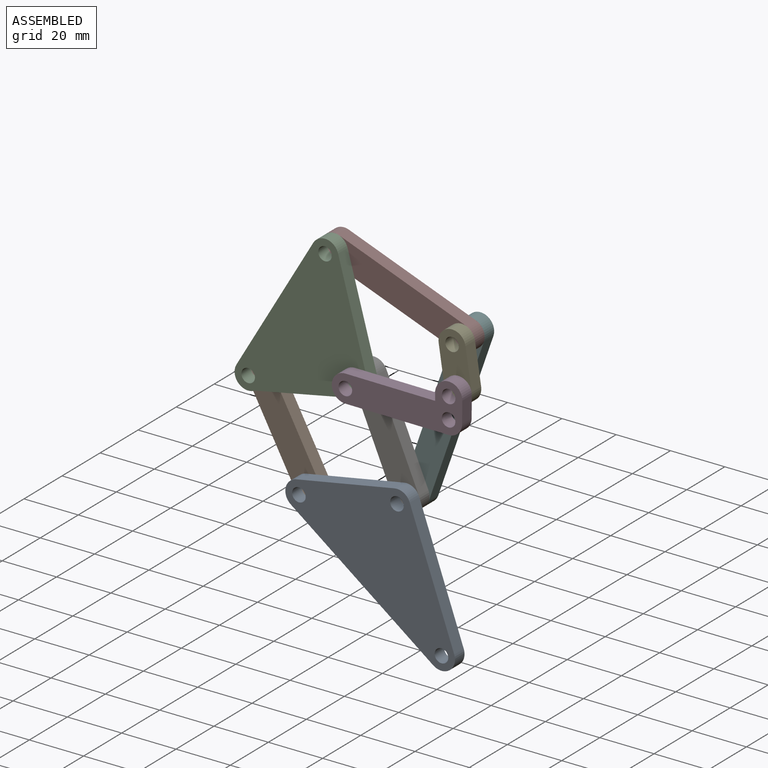
[diagram: assembled view]
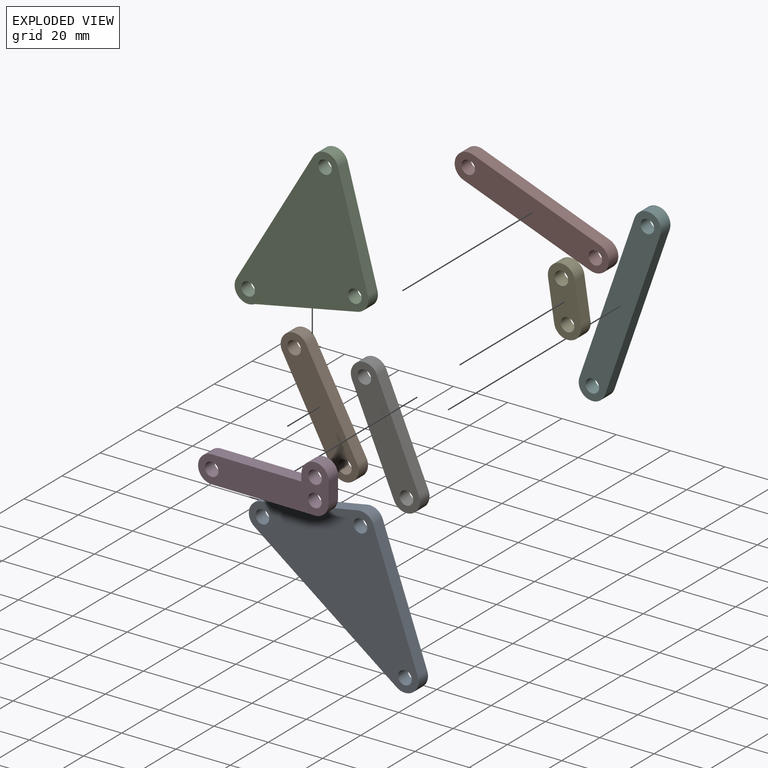
[diagram: exploded view]
GUIDED TOUR — MATED ASSEMBLY (Onshape document 87e573bf65f97dc9dd49f479, AutoMate assembly 87e573bf65f97dc9dd49f479_4f0b6509377dddf5492f0ded_013e0e6eb9ad2438bd5088ae_default)

This assembly has 8 components, labeled P0..P7 below (a component is one placed occurrence of a part; the same part can appear more than once), held together by 16 mates. A mate is a constraint between two components; its type names the relative motion it leaves free:
  BALL — leaves all rotation about the listed point free (a ball joint),
  CYLINDRICAL — leaves both rotation about and translation along the listed axis free,
  PIN_SLOT — leaves rotation about the listed axis plus translation along a slot free.
Axis/direction vectors are unit vectors and 'through' points are millimeter coordinates, both in the assembly's world frame.

MATES
  1. PIN_SLOT "Pin slot 1": P4 <-> P3, axis (0.000, 1.000, 0.000) through (-17.35, -12.50, 57.22) mm
  2. CYLINDRICAL "Cylindrical 1": P2 <-> P3, axis (0.000, -1.000, 0.000) through (-55.41, -12.50, 49.69) mm
  3. CYLINDRICAL "Cylindrical 8": P6 <-> P5, axis (0.000, 1.000, 0.000) through (-39.91, -2.50, 13.57) mm
  4. CYLINDRICAL "Cylindrical 7": P4 <-> P7, axis (0.000, 1.000, 0.000) through (-19.61, -7.50, 72.05) mm
  5. CYLINDRICAL "Cylindrical 3": P0 <-> P6, axis (0.000, 1.000, 0.000) through (-39.91, -7.50, 13.57) mm
  6. CYLINDRICAL "Cylindrical 5": P2 <-> P6, axis (0.000, 1.000, 0.000) through (-55.41, -7.50, 49.69) mm
  7. BALL "Ball 2": P2 <-> P3, direction (0.000, -1.000, 0.000) through (-55.41, -12.50, 49.69) mm
  8. CYLINDRICAL "Cylindrical 4": P1 <-> P2, axis (0.000, -1.000, 0.000) through (-94.68, -7.50, 41.61) mm
  9. BALL "Ball 1": P0 <-> P6, direction (0.000, 1.000, 0.000) through (-39.91, -7.50, 13.57) mm
  10. BALL "Ball 3": P1 <-> P0, direction (0.000, -1.000, 0.000) through (-76.00, -7.50, 6.92) mm
  11. CYLINDRICAL "Cylindrical 6": P4 <-> P3, axis (0.000, 1.000, 0.000) through (-17.35, -12.50, 57.22) mm
  12. BALL "Ball 9": P7 <-> P5, direction (0.000, 1.000, 0.000) through (-19.61, -2.50, 72.05) mm
  13. CYLINDRICAL "Cylindrical 2": P0 <-> P1, axis (0.000, 1.000, 0.000) through (-76.00, -7.50, 6.92) mm
  14. BALL "Ball 8": P6 <-> P5, direction (0.000, 1.000, 0.000) through (-39.91, -2.50, 13.57) mm
  15. BALL "Ball 4": P2 <-> P1, direction (0.000, 1.000, 0.000) through (-94.68, -7.50, 41.61) mm
  16. BALL "Ball 7": P7 <-> P2, direction (0.000, -1.000, 0.000) through (-66.39, -7.50, 89.70) mm

ASSEMBLY ORDER
  1. P6 — the base component [order verified]
  2. P1 [order verified]
  3. P2 [order verified]
  4. P4 [order verified]
  5. P7 [order verified]
  6. P0 [order verified]
  7. P5 [order verified]
  8. P3 [order verified]
Order-tag legend:
  [order verified] — this step's position reverses a verified removal order: the component was checked to insert without passing through the ones already placed.

Of the 8 components, 6 carry the full construction recipe — the FeatureScript program that regenerates the part's solid from scratch; the rest are supplied as boundary geometry only.
Each toured component is shown spotlighted twice — in the assembled view, then in the exploded view, where a leader line traces a displaced component back to its assembled socket (saturated green if recipe-attached, orange if geometry-only; every other component desaturated gray) — followed by its recipe or geometry summary and the mates that hold it.
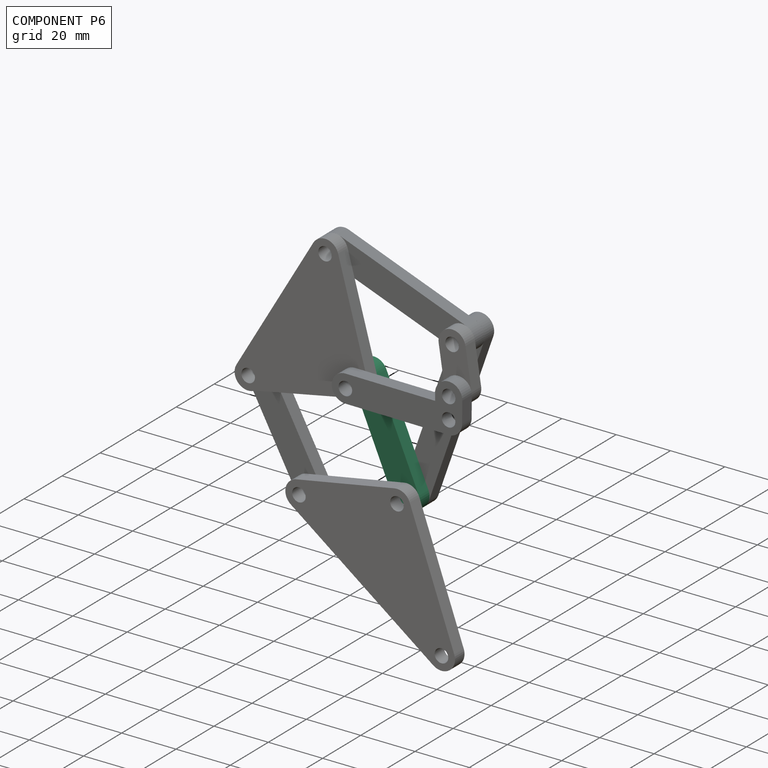
[diagram: component P6 — assembled]
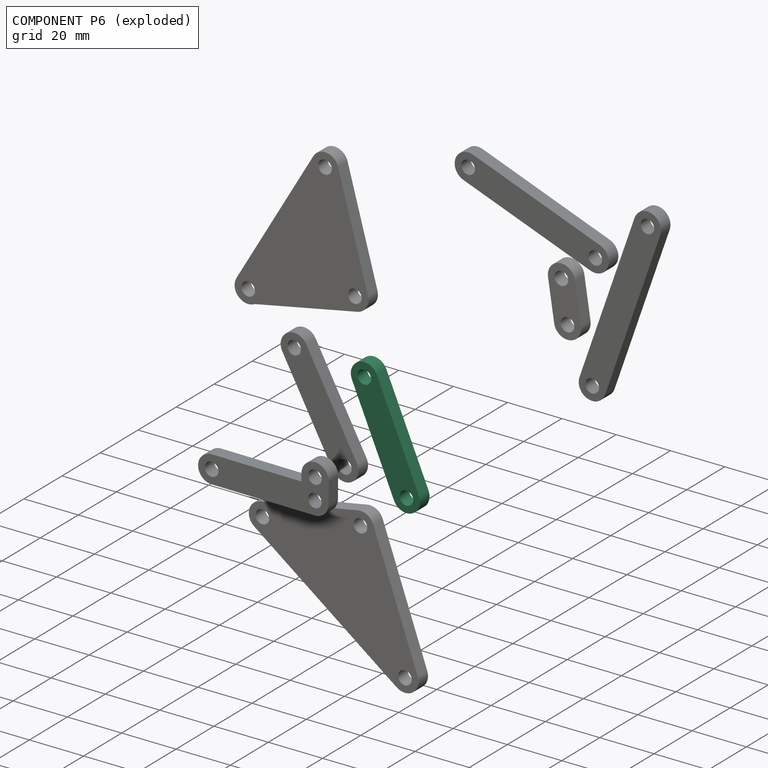
[diagram: component P6 — exploded]
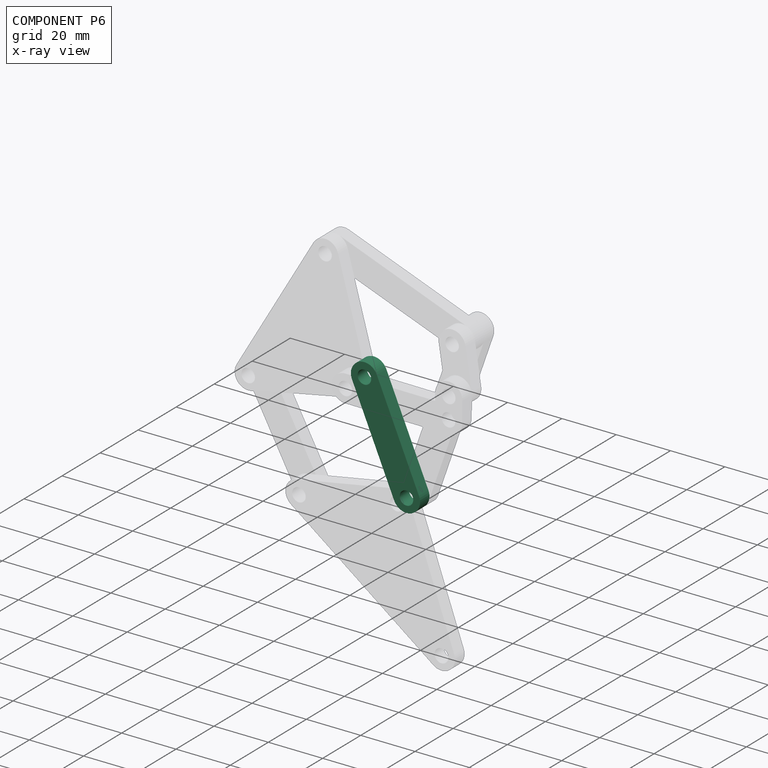
[diagram: component P6 — x-ray view]
COMPONENT P6 — recipe-attached (CADFS 00826235, mesh-verified: the recipe's output STEP matches this component's geometry to below the mesh-comparison resolution (tessellation chordal tolerance ~0.0758 mm)).
Held by: CYLINDRICAL mate "Cylindrical 8" to P5; CYLINDRICAL mate "Cylindrical 3" to P0; CYLINDRICAL mate "Cylindrical 5" to P2; BALL mate "Ball 1" to P0; BALL mate "Ball 8" to P5.
Construction recipe (FeatureScript — the CAD program that rebuilds this solid; sketch coordinates are in the units given by the * unit suffixes, e.g. mm):

FeatureScript 1511;
import(path : "onshape/std/geometry.fs", version : "1511.0");
import(path : "onshape/std/common.fs", version : "1511.0");
const mm = millimeter;
const VERTEX = EntityType.VERTEX;
const EDGE = EntityType.EDGE;
const FACE = EntityType.FACE;
const BODY = EntityType.BODY;
function v(x, y){return vector(x, y);}
function OD(order){return orderDisambiguation(order);}
function OSD(set){return originalSetDisambiguation(set);}
function TD(topology){return topologyDisambiguation(topology);}
function TDD(query){return trueDependencyDisambiguation(query);}
function sQuery(a, b, c) {return sketchEntityQuery(a, b, c);}

annotation { "Feature Type Name" : "Feature", "Feature Type Description" : "" }
export const myFeature = defineFeature(function(context is Context, id is Id, definition is map)
    precondition{}
    {
        {
            var Q0;
            Q0=qCreatedBy(makeId("Front.planeOp"),FACE);
            var sketch = newSketch(context, id + "F0", { "sketchPlane" : qUnion([Q0])});
            skArc(sketch, "E0", {"start": v(-33.5, 14.77) * mm, "mid": v(-38.5, 9.77) * mm, "end": v(-33.5, 4.77) * mm});
            skArc(sketch, "E1", {"start": v(5.8, 4.77) * mm, "mid": v(10.8, 9.77) * mm, "end": v(5.8, 14.77) * mm});
            skLineSegment(sketch, "E2", {"start": v(-33.5, 14.77) * mm, "end": v(5.8, 14.77) * mm});
            skLineSegment(sketch, "E3", {"start": v(-33.5, 4.77) * mm, "end": v(5.8, 4.77) * mm});
            skCircle(sketch, "E4", {"center": v(-33.5, 9.77) * mm, "radius": 2.5 * mm});
            skCircle(sketch, "E5", {"center": v(5.8, 9.77) * mm, "radius": 2.5 * mm});
            skSolve(sketch);
        }
        {
            var Q0;
            Q0 = qSketchRegion(id + "F0", true);
            extrude(context, id + "F1", {"entities" : qUnion([Q0]), "depth" : 5 * mm, "offsetDistance" : 25 * mm});
        }
    });
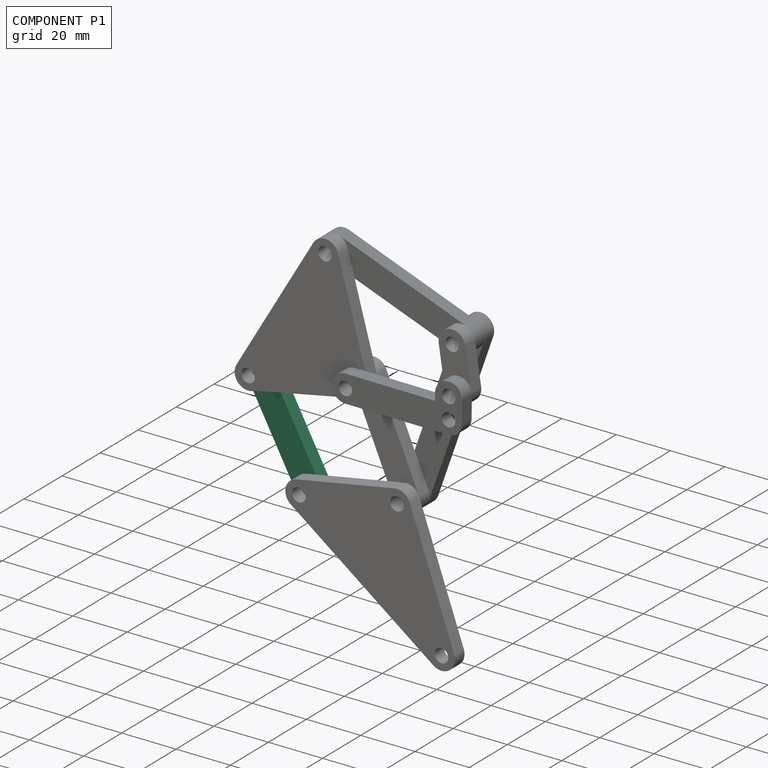
[diagram: component P1 — assembled]
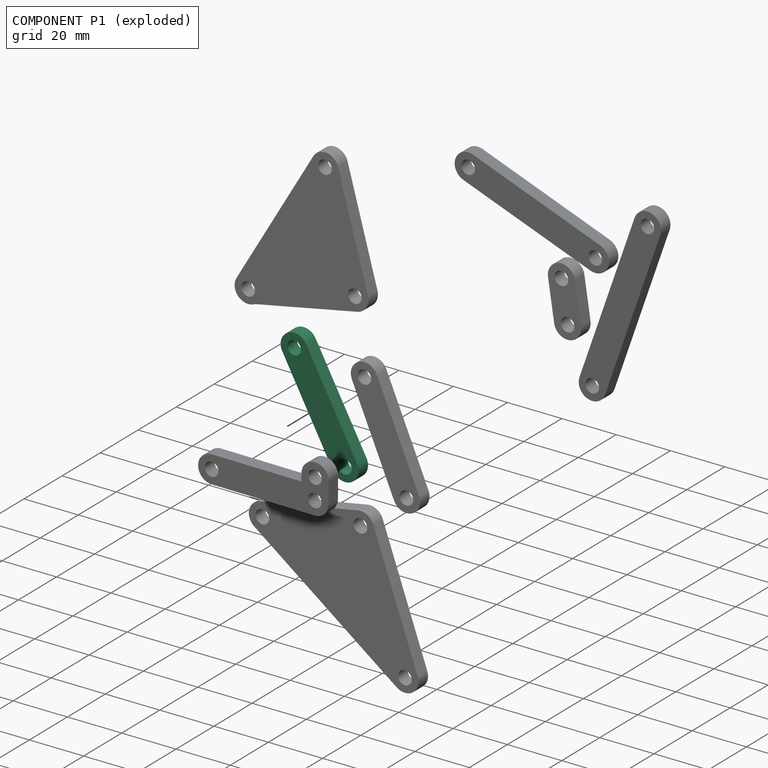
[diagram: component P1 — exploded]
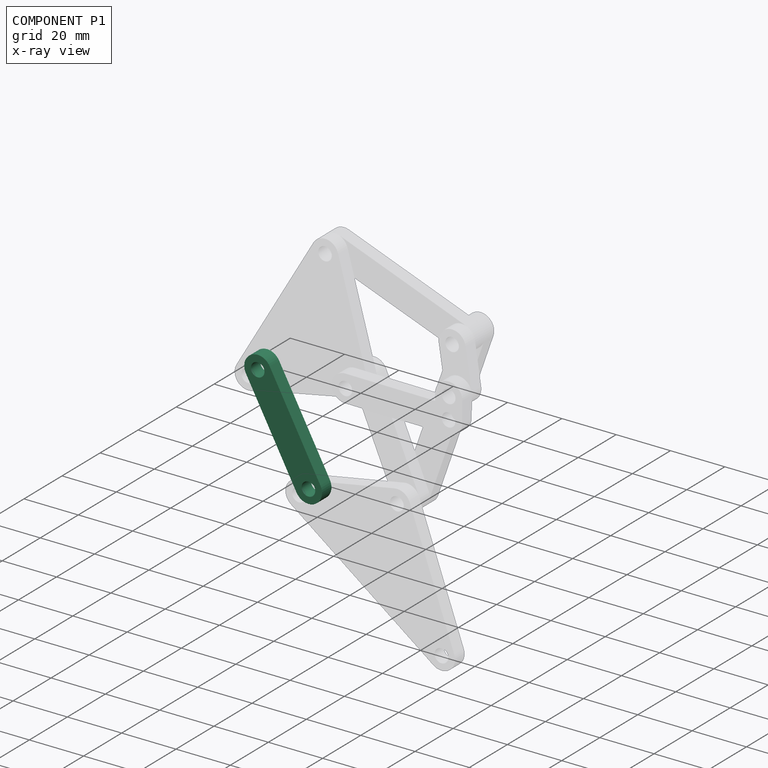
[diagram: component P1 — x-ray view]
COMPONENT P1 — recipe-attached (CADFS 00826232, mesh-verified: the recipe's output STEP matches this component's geometry to below the mesh-comparison resolution (tessellation chordal tolerance ~0.0759 mm)).
Held by: CYLINDRICAL mate "Cylindrical 4" to P2; BALL mate "Ball 3" to P0; CYLINDRICAL mate "Cylindrical 2" to P0; BALL mate "Ball 4" to P2.
Construction recipe (FeatureScript — the CAD program that rebuilds this solid; sketch coordinates are in the units given by the * unit suffixes, e.g. mm):

FeatureScript 1511;
import(path : "onshape/std/geometry.fs", version : "1511.0");
import(path : "onshape/std/common.fs", version : "1511.0");
const mm = millimeter;
const VERTEX = EntityType.VERTEX;
const EDGE = EntityType.EDGE;
const FACE = EntityType.FACE;
const BODY = EntityType.BODY;
function v(x, y){return vector(x, y);}
function OD(order){return orderDisambiguation(order);}
function OSD(set){return originalSetDisambiguation(set);}
function TD(topology){return topologyDisambiguation(topology);}
function TDD(query){return trueDependencyDisambiguation(query);}
function sQuery(a, b, c) {return sketchEntityQuery(a, b, c);}

annotation { "Feature Type Name" : "Feature", "Feature Type Description" : "" }
export const myFeature = defineFeature(function(context is Context, id is Id, definition is map)
    precondition{}
    {
        {
            var Q0;
            Q0=qCreatedBy(makeId("Front.planeOp"),FACE);
            var sketch = newSketch(context, id + "F0", { "sketchPlane" : qUnion([Q0])});
            skArc(sketch, "E0", {"start": v(-14.81, 14.08) * mm, "mid": v(-19.8, 8.8) * mm, "end": v(-14.28, 4.1) * mm});
            skArc(sketch, "E1", {"start": v(24.59, 4.08) * mm, "mid": v(29.59, 9.07) * mm, "end": v(24.59, 14.08) * mm});
            skLineSegment(sketch, "E2", {"start": v(-14.81, 14.08) * mm, "end": v(24.59, 14.08) * mm});
            skLineSegment(sketch, "E3", {"start": v(-14.28, 4.1) * mm, "end": v(24.59, 4.08) * mm});
            skCircle(sketch, "E4", {"center": v(-14.81, 9.08) * mm, "radius": 2.5 * mm});
            skCircle(sketch, "E5", {"center": v(24.59, 9.08) * mm, "radius": 2.5 * mm});
            skSolve(sketch);
        }
        {
            var Q0;
            Q0 = qSketchRegion(id + "F0", true);
            extrude(context, id + "F1", {"entities" : qUnion([Q0]), "depth" : 5 * mm, "offsetDistance" : 25 * mm});
        }
    });
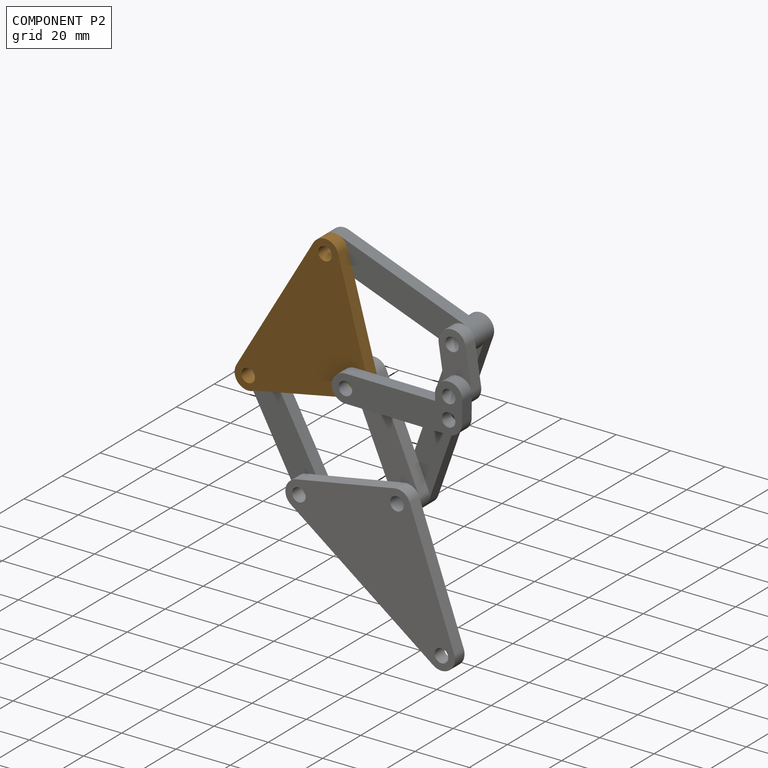
[diagram: component P2 — assembled]
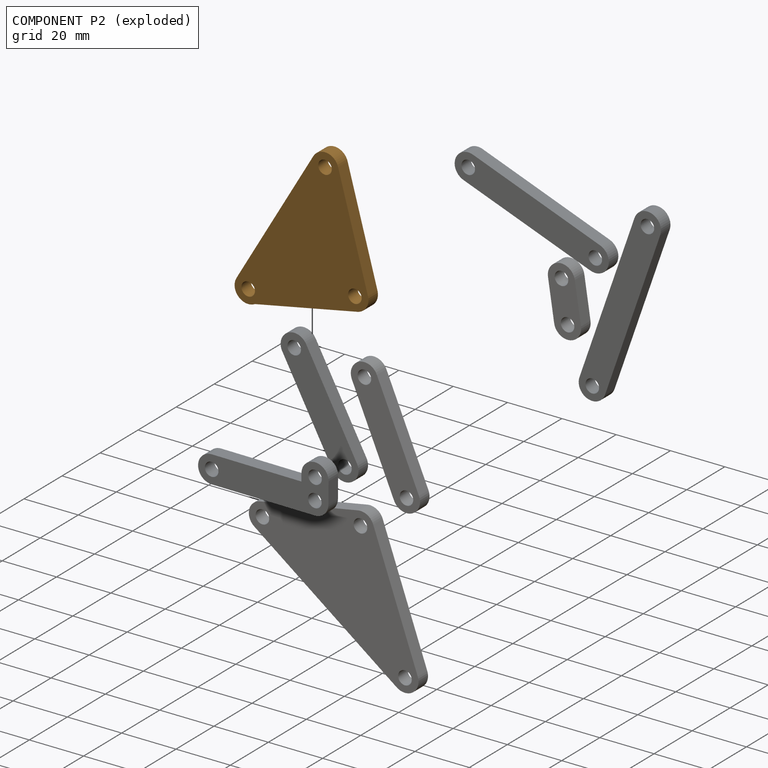
[diagram: component P2 — exploded]
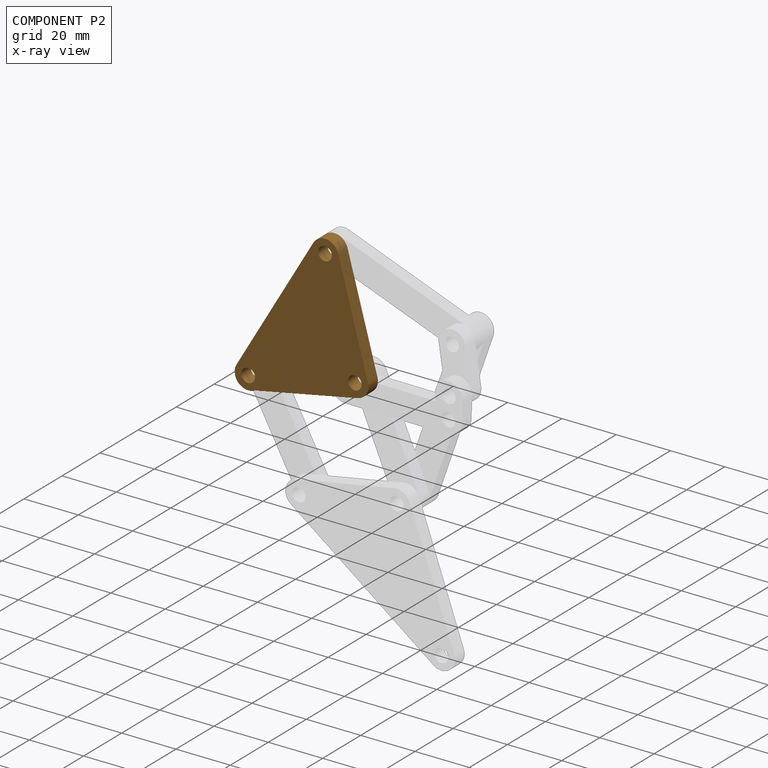
[diagram: component P2 — x-ray view]
COMPONENT P2 — geometry summary (no construction recipe available for this part):
  bounding box: 61.8 x 47.6 x 5.0 mm
  B-rep topology: 1 solid, 11 faces, 54 edges
  volume: 7661 mm^3 (52% of its bounding box)
  symmetry: mirror-symmetric across its y mid-plane
Held by: CYLINDRICAL mate "Cylindrical 1" to P3; CYLINDRICAL mate "Cylindrical 5" to P6; BALL mate "Ball 2" to P3; CYLINDRICAL mate "Cylindrical 4" to P1; BALL mate "Ball 4" to P1; BALL mate "Ball 7" to P7.
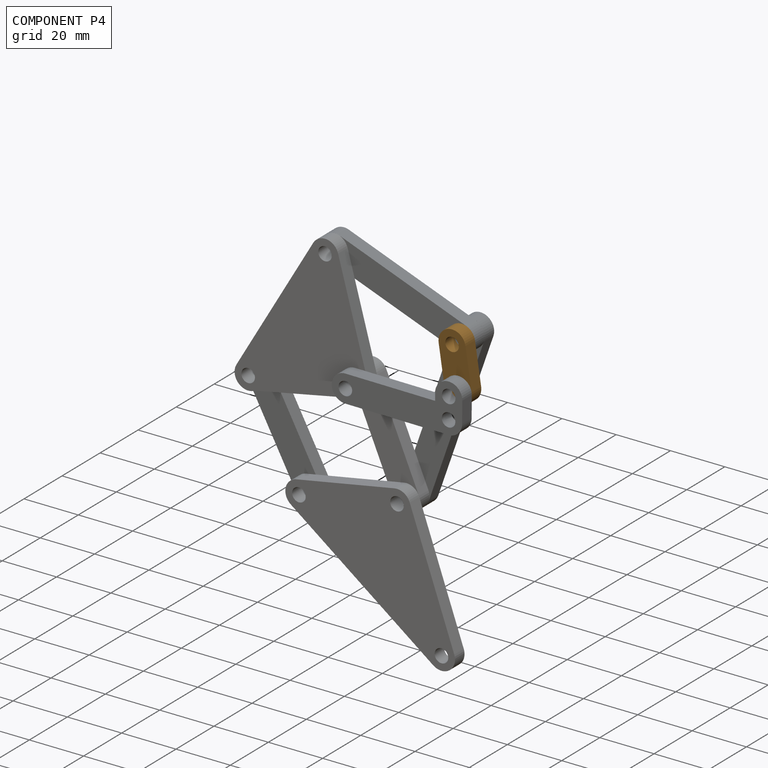
[diagram: component P4 — assembled]
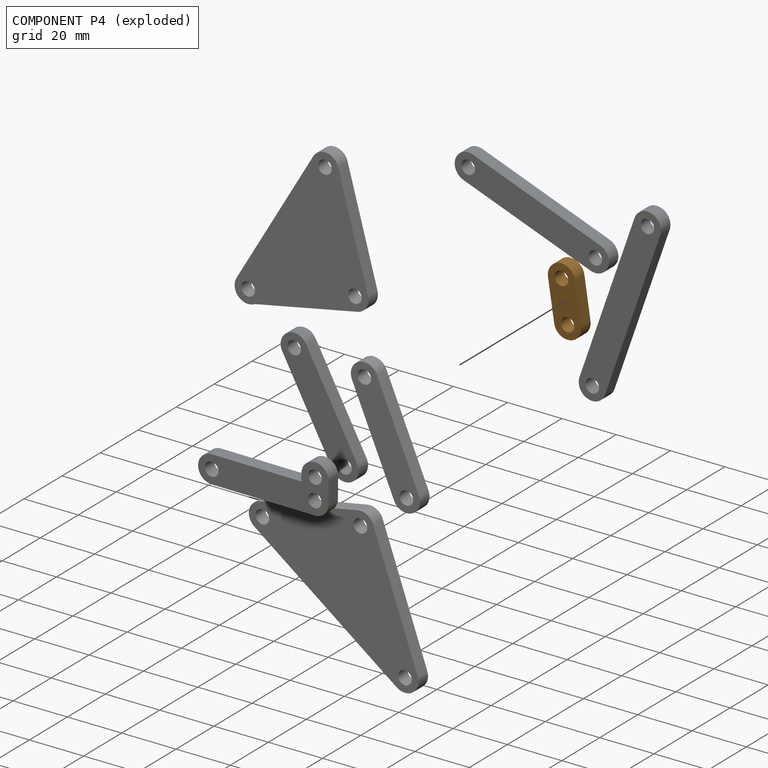
[diagram: component P4 — exploded]
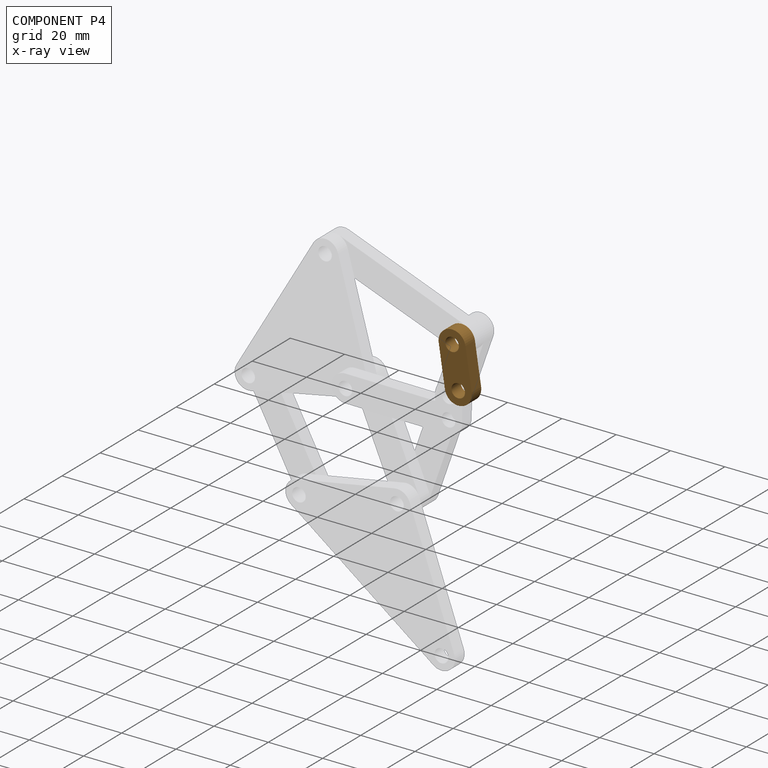
[diagram: component P4 — x-ray view]
COMPONENT P4 — geometry summary (no construction recipe available for this part):
  bounding box: 25.0 x 10.0 x 5.0 mm
  B-rep topology: 1 solid, 8 faces, 36 edges
  volume: 946 mm^3 (76% of its bounding box)
  symmetry: 2-fold rotationally symmetric about the x axis; 2-fold rotationally symmetric about the y axis; 2-fold rotationally symmetric about the z axis; mirror-symmetric across its x mid-plane, y mid-plane, z mid-plane
Held by: PIN_SLOT mate "Pin slot 1" to P3; CYLINDRICAL mate "Cylindrical 7" to P7; CYLINDRICAL mate "Cylindrical 6" to P3.
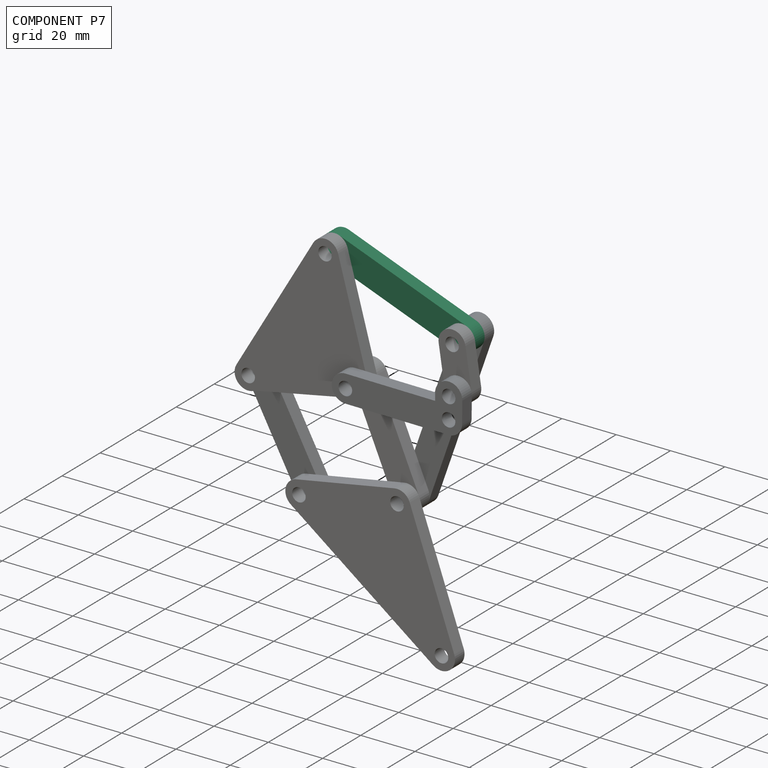
[diagram: component P7 — assembled]
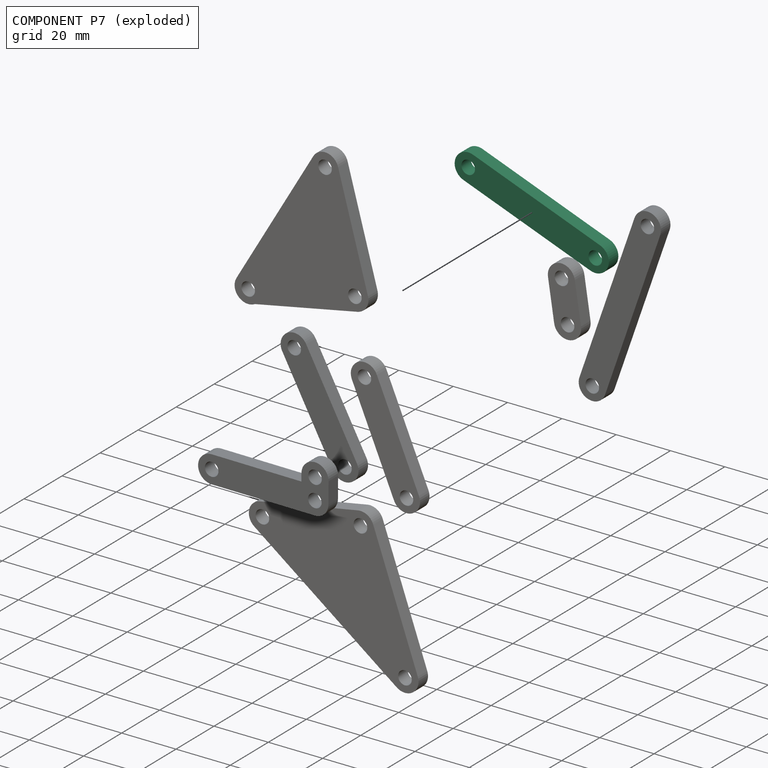
[diagram: component P7 — exploded]
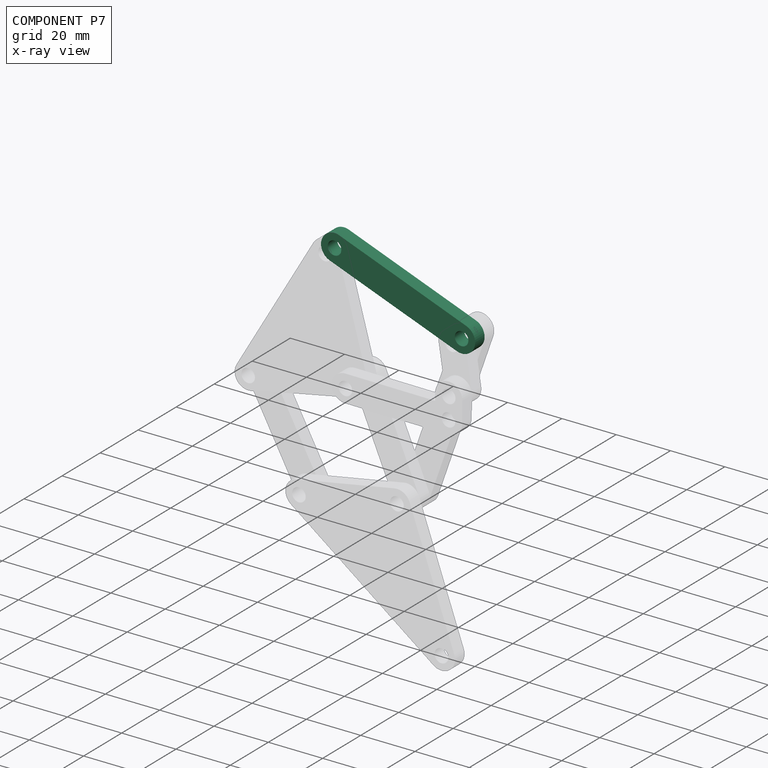
[diagram: component P7 — x-ray view]
COMPONENT P7 — recipe-attached (CADFS 00826278, mesh-verified: the recipe's output STEP matches this component's geometry to below the mesh-comparison resolution (tessellation chordal tolerance ~0.0915 mm)).
Held by: CYLINDRICAL mate "Cylindrical 7" to P4; BALL mate "Ball 9" to P5; BALL mate "Ball 7" to P2.
Construction recipe (FeatureScript — the CAD program that rebuilds this solid; sketch coordinates are in the units given by the * unit suffixes, e.g. mm):

FeatureScript 1511;
import(path : "onshape/std/geometry.fs", version : "1511.0");
import(path : "onshape/std/common.fs", version : "1511.0");
const mm = millimeter;
const VERTEX = EntityType.VERTEX;
const EDGE = EntityType.EDGE;
const FACE = EntityType.FACE;
const BODY = EntityType.BODY;
function v(x, y){return vector(x, y);}
function OD(order){return orderDisambiguation(order);}
function OSD(set){return originalSetDisambiguation(set);}
function TD(topology){return topologyDisambiguation(topology);}
function TDD(query){return trueDependencyDisambiguation(query);}
function sQuery(a, b, c) {return sketchEntityQuery(a, b, c);}

annotation { "Feature Type Name" : "Feature", "Feature Type Description" : "" }
export const myFeature = defineFeature(function(context is Context, id is Id, definition is map)
    precondition{}
    {
        {
            var Q0;
            Q0=qCreatedBy(makeId("Front.planeOp"),FACE);
            var sketch = newSketch(context, id + "F0", { "sketchPlane" : qUnion([Q0])});
            skArc(sketch, "E0", {"start": v(-13.14, 20.02) * mm, "mid": v(-18.14, 15.02) * mm, "end": v(-13.14, 10.02) * mm});
            skArc(sketch, "E1", {"start": v(36.86, 10.02) * mm, "mid": v(41.86, 15.02) * mm, "end": v(36.86, 20.02) * mm});
            skLineSegment(sketch, "E2", {"start": v(-13.14, 20.02) * mm, "end": v(36.86, 20.02) * mm});
            skLineSegment(sketch, "E3", {"start": v(-13.14, 10.02) * mm, "end": v(36.86, 10.02) * mm});
            skCircle(sketch, "E4", {"center": v(-13.14, 15.02) * mm, "radius": 2.5 * mm});
            skCircle(sketch, "E5", {"center": v(36.86, 15.02) * mm, "radius": 2.5 * mm});
            skSolve(sketch);
        }
        {
            var Q0;
            Q0 = qSketchRegion(id + "F0", true);
            extrude(context, id + "F1", {"entities" : qUnion([Q0]), "depth" : 5 * mm, "offsetDistance" : 25 * mm});
        }
    });
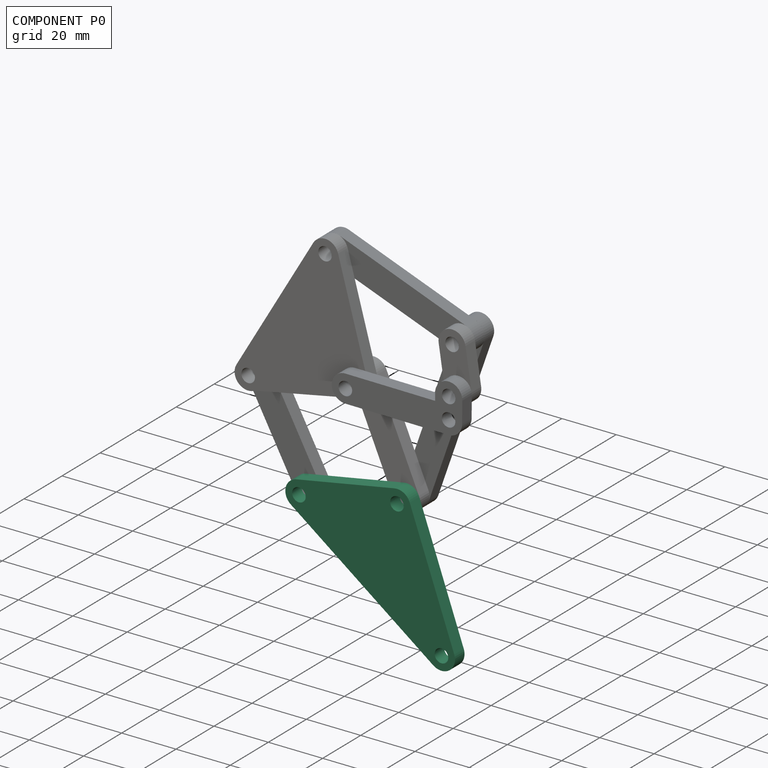
[diagram: component P0 — assembled]
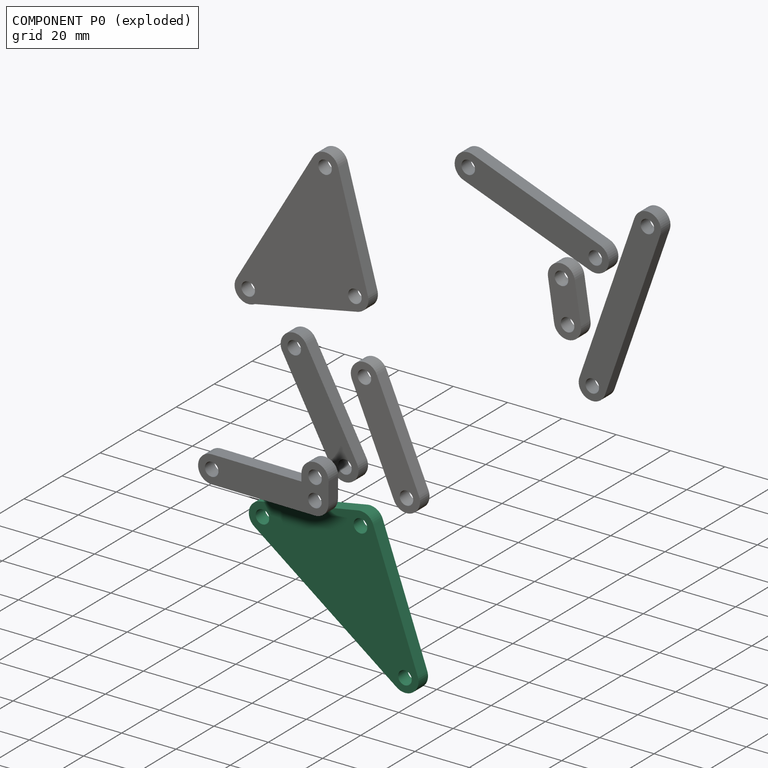
[diagram: component P0 — exploded]
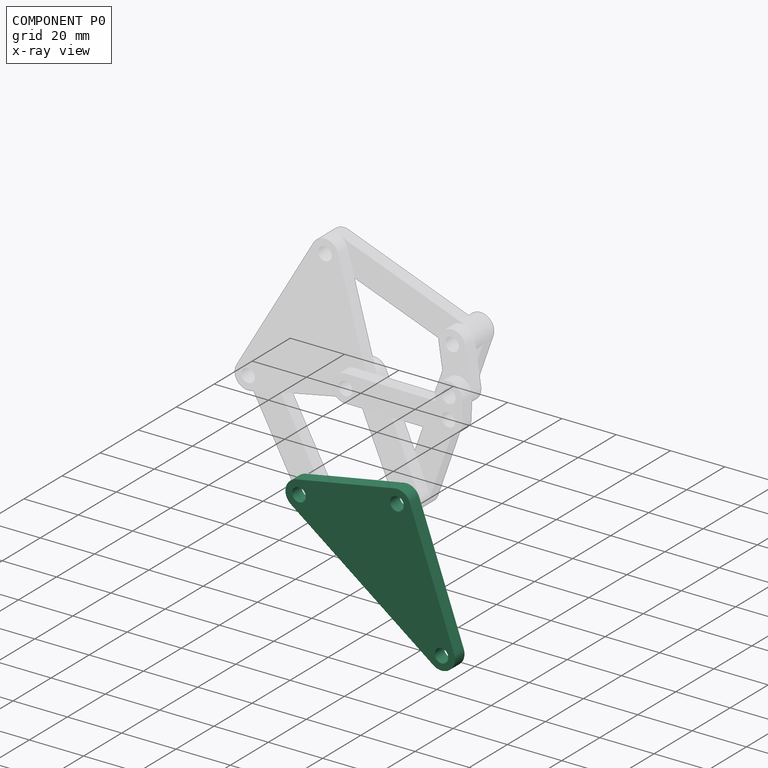
[diagram: component P0 — x-ray view]
COMPONENT P0 — recipe-attached (CADFS 00826224, mesh-verified: the recipe's output STEP matches this component's geometry to below the mesh-comparison resolution (tessellation chordal tolerance ~0.127 mm)).
Held by: CYLINDRICAL mate "Cylindrical 3" to P6; BALL mate "Ball 1" to P6; BALL mate "Ball 3" to P1; CYLINDRICAL mate "Cylindrical 2" to P1.
Construction recipe (FeatureScript — the CAD program that rebuilds this solid; sketch coordinates are in the units given by the * unit suffixes, e.g. mm):

FeatureScript 1511;
import(path : "onshape/std/geometry.fs", version : "1511.0");
import(path : "onshape/std/common.fs", version : "1511.0");
const mm = millimeter;
const VERTEX = EntityType.VERTEX;
const EDGE = EntityType.EDGE;
const FACE = EntityType.FACE;
const BODY = EntityType.BODY;
function v(x, y){return vector(x, y);}
function OD(order){return orderDisambiguation(order);}
function OSD(set){return originalSetDisambiguation(set);}
function TD(topology){return topologyDisambiguation(topology);}
function TDD(query){return trueDependencyDisambiguation(query);}
function sQuery(a, b, c) {return sketchEntityQuery(a, b, c);}

annotation { "Feature Type Name" : "Feature", "Feature Type Description" : "" }
export const myFeature = defineFeature(function(context is Context, id is Id, definition is map)
    precondition{}
    {
        {
            var Q0;
            Q0=qCreatedBy(makeId("Front.planeOp"),FACE);
            var sketch = newSketch(context, id + "F0", { "sketchPlane" : qUnion([Q0])});
            skArc(sketch, "E0", {"start": v(-20.3, 0) * mm, "mid": v(-21.3, -5.5) * mm, "end": v(-16.59, -8.5) * mm});
            skArc(sketch, "E1", {"start": v(9.97, 28.46) * mm, "mid": v(6.58, 29.16) * mm, "end": v(3.55, 27.5) * mm});
            skArc(sketch, "E2", {"start": v(49.09, -6.65) * mm, "mid": v(53.77, -2.95) * mm, "end": v(51.59, 2.6) * mm});
            skLineSegment(sketch, "E3", {"start": v(-20.3, 0) * mm, "end": v(3.55, 27.5) * mm});
            skLineSegment(sketch, "E4", {"start": v(-16.59, -8.5) * mm, "end": v(49.09, -6.65) * mm});
            skLineSegment(sketch, "E5", {"start": v(9.97, 28.46) * mm, "end": v(51.59, 2.6) * mm});
            skCircle(sketch, "E6", {"center": v(7.33, 24.22) * mm, "radius": 2.5 * mm});
            skCircle(sketch, "E7", {"center": v(-16.73, -3.5) * mm, "radius": 2.5 * mm});
            skCircle(sketch, "E8", {"center": v(48.95, -1.65) * mm, "radius": 2.5 * mm});
            skSolve(sketch);
        }
        {
            var Q0;
            Q0 = qSketchRegion(id + "F0", true);
            extrude(context, id + "F1", {"entities" : qUnion([Q0]), "depth" : 5 * mm, "offsetDistance" : 25 * mm});
        }
    });
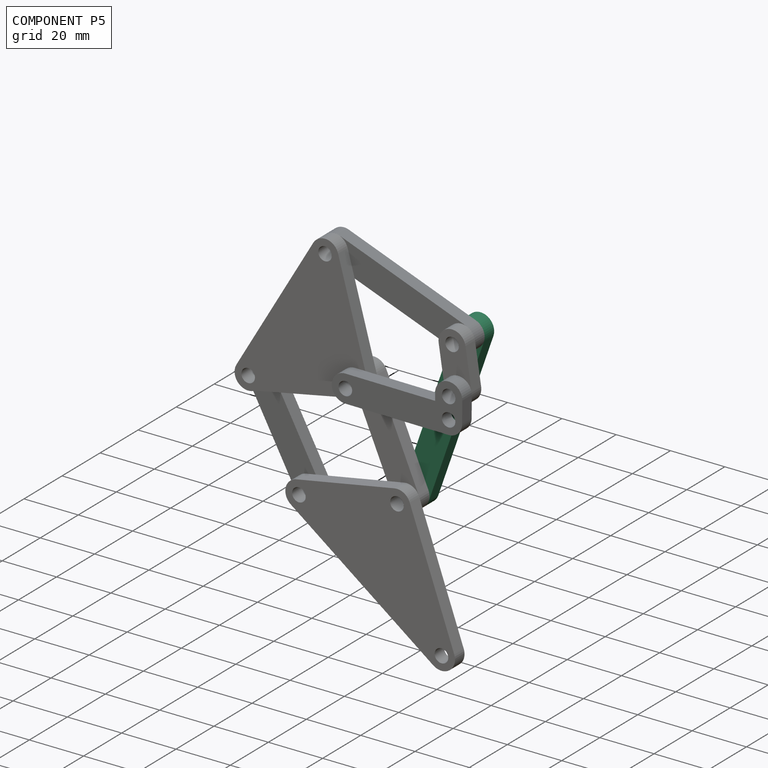
[diagram: component P5 — assembled]
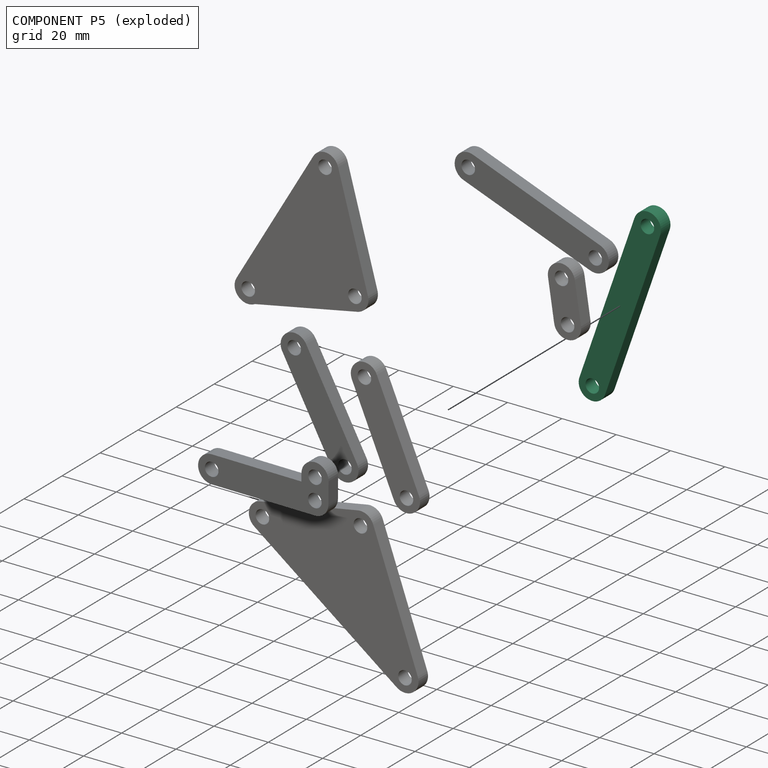
[diagram: component P5 — exploded]
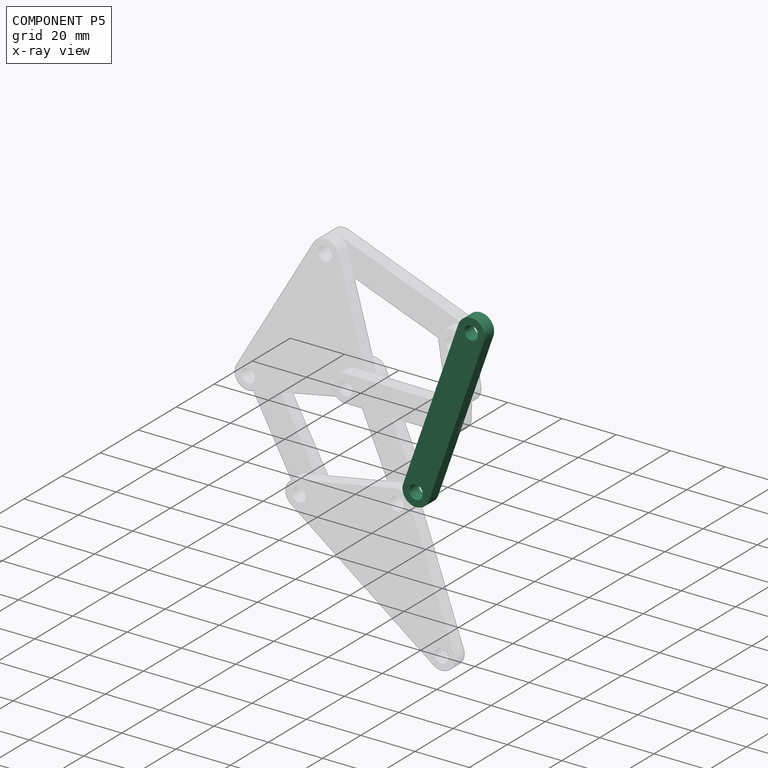
[diagram: component P5 — x-ray view]
COMPONENT P5 — recipe-attached (CADFS 00826281, mesh-verified: the recipe's output STEP matches this component's geometry to below the mesh-comparison resolution (tessellation chordal tolerance ~0.109 mm)).
Held by: CYLINDRICAL mate "Cylindrical 8" to P6; BALL mate "Ball 9" to P7; BALL mate "Ball 8" to P6.
Construction recipe (FeatureScript — the CAD program that rebuilds this solid; sketch coordinates are in the units given by the * unit suffixes, e.g. mm):

FeatureScript 1511;
import(path : "onshape/std/geometry.fs", version : "1511.0");
import(path : "onshape/std/common.fs", version : "1511.0");
const mm = millimeter;
const VERTEX = EntityType.VERTEX;
const EDGE = EntityType.EDGE;
const FACE = EntityType.FACE;
const BODY = EntityType.BODY;
function v(x, y){return vector(x, y);}
function OD(order){return orderDisambiguation(order);}
function OSD(set){return originalSetDisambiguation(set);}
function TD(topology){return topologyDisambiguation(topology);}
function TDD(query){return trueDependencyDisambiguation(query);}
function sQuery(a, b, c) {return sketchEntityQuery(a, b, c);}

annotation { "Feature Type Name" : "Feature", "Feature Type Description" : "" }
export const myFeature = defineFeature(function(context is Context, id is Id, definition is map)
    precondition{}
    {
        {
            var Q0;
            Q0=qCreatedBy(makeId("Front.planeOp"),FACE);
            var sketch = newSketch(context, id + "F0", { "sketchPlane" : qUnion([Q0])});
            skArc(sketch, "E0", {"start": v(-5.89, 19.29) * mm, "mid": v(-10.89, 14.29) * mm, "end": v(-5.89, 9.29) * mm});
            skArc(sketch, "E1", {"start": v(56.01, 9.29) * mm, "mid": v(61.01, 14.29) * mm, "end": v(56.01, 19.29) * mm});
            skLineSegment(sketch, "E2", {"start": v(-5.89, 19.29) * mm, "end": v(56.01, 19.29) * mm});
            skLineSegment(sketch, "E3", {"start": v(-5.89, 9.29) * mm, "end": v(56.01, 9.29) * mm});
            skCircle(sketch, "E4", {"center": v(-5.89, 14.29) * mm, "radius": 2.5 * mm});
            skCircle(sketch, "E5", {"center": v(56.01, 14.29) * mm, "radius": 2.5 * mm});
            skSolve(sketch);
        }
        {
            var Q0;
            Q0 = qSketchRegion(id + "F0", true);
            extrude(context, id + "F1", {"entities" : qUnion([Q0]), "depth" : 5 * mm, "offsetDistance" : 25 * mm});
        }
    });
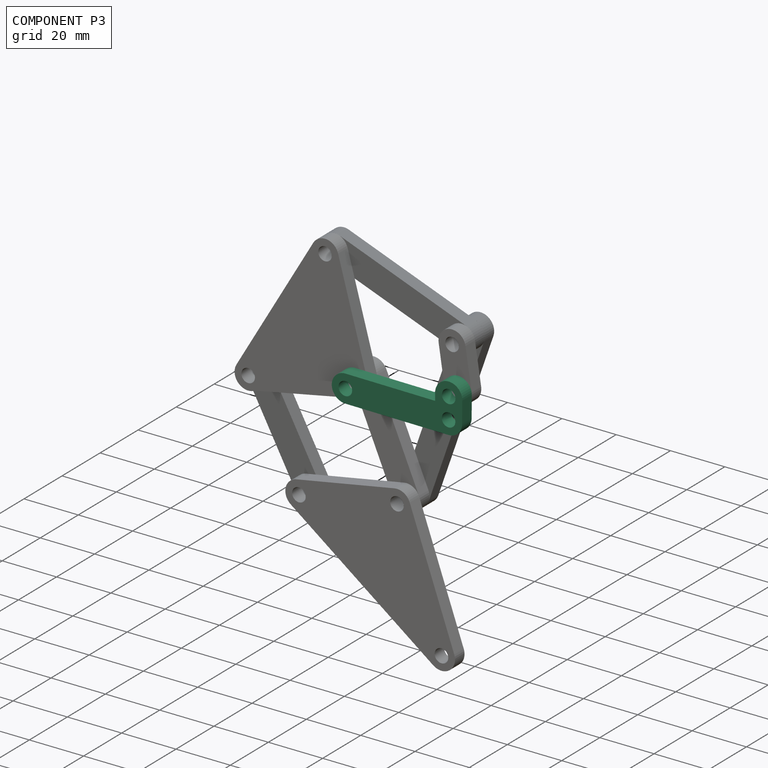
[diagram: component P3 — assembled]
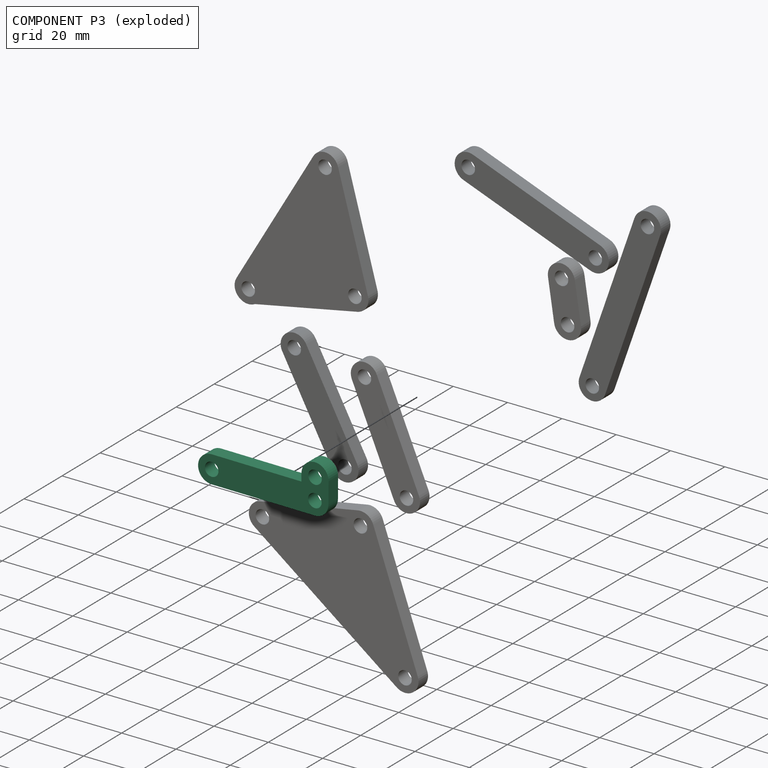
[diagram: component P3 — exploded]
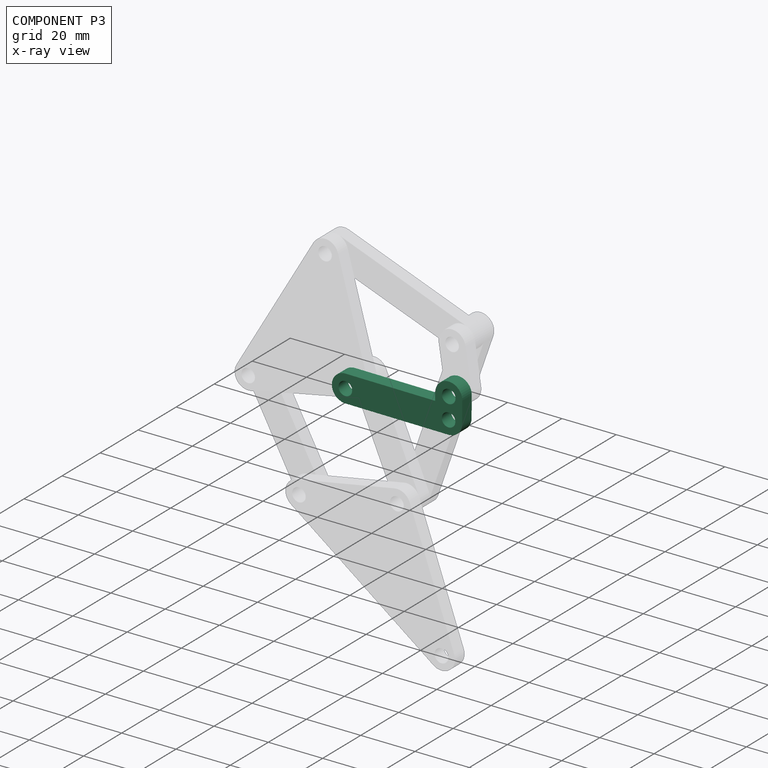
[diagram: component P3 — x-ray view]
COMPONENT P3 — recipe-attached (CADFS 00829097, mesh-verified: the recipe's output STEP matches this component's geometry to below the mesh-comparison resolution (tessellation chordal tolerance ~0.0771 mm)).
Held by: PIN_SLOT mate "Pin slot 1" to P4; CYLINDRICAL mate "Cylindrical 1" to P2; BALL mate "Ball 2" to P2; CYLINDRICAL mate "Cylindrical 6" to P4.
Construction recipe (FeatureScript — the CAD program that rebuilds this solid; sketch coordinates are in the units given by the * unit suffixes, e.g. mm):

FeatureScript 1511;
import(path : "onshape/std/geometry.fs", version : "1511.0");
import(path : "onshape/std/common.fs", version : "1511.0");
const mm = millimeter;
const VERTEX = EntityType.VERTEX;
const EDGE = EntityType.EDGE;
const FACE = EntityType.FACE;
const BODY = EntityType.BODY;
function v(x, y){return vector(x, y);}
function OD(order){return orderDisambiguation(order);}
function OSD(set){return originalSetDisambiguation(set);}
function TD(topology){return topologyDisambiguation(topology);}
function TDD(query){return trueDependencyDisambiguation(query);}
function sQuery(a, b, c) {return sketchEntityQuery(a, b, c);}

annotation { "Feature Type Name" : "Feature", "Feature Type Description" : "" }
export const myFeature = defineFeature(function(context is Context, id is Id, definition is map)
    precondition{}
    {
        {
            var Q0;
            Q0=qCreatedBy(makeId("Front.planeOp"),FACE);
            var sketch = newSketch(context, id + "F0", { "sketchPlane" : qUnion([Q0])});
            skArc(sketch, "E0", {"start": v(-22.28, 21.13) * mm, "mid": v(-27.28, 16.13) * mm, "end": v(-22.28, 11.13) * mm});
            skArc(sketch, "E1", {"start": v(15.72, 11.13) * mm, "mid": v(19.25, 12.6) * mm, "end": v(20.72, 16.13) * mm});
            skLineSegment(sketch, "E2", {"start": v(-22.28, 21.13) * mm, "end": v(10.72, 21.13) * mm});
            skLineSegment(sketch, "E3", {"start": v(-22.28, 11.13) * mm, "end": v(15.72, 11.13) * mm});
            skCircle(sketch, "E4", {"center": v(-22.28, 16.13) * mm, "radius": 2.5 * mm});
            skArc(sketch, "E5", {"start": v(20.72, 23.93) * mm, "mid": v(15.72, 28.93) * mm, "end": v(10.72, 23.93) * mm});
            skLineSegment(sketch, "E6", {"start": v(20.72, 23.93) * mm, "end": v(20.72, 16.13) * mm});
            skLineSegment(sketch, "E7", {"start": v(10.72, 23.93) * mm, "end": v(10.72, 21.13) * mm});
            skPoint(sketch, "E8.orphan", {"position": v(15.72, 21.13) * mm});
            skCircle(sketch, "E9", {"center": v(15.72, 23.93) * mm, "radius": 2.5 * mm});
            skCircle(sketch, "E10", {"center": v(15.72, 16.13) * mm, "radius": 2.5 * mm});
            skSolve(sketch);
        }
        {
            var Q0;
            Q0 = qSketchRegion(id + "F0", true);
            extrude(context, id + "F1", {"entities" : qUnion([Q0]), "depth" : 5 * mm, "offsetDistance" : 25 * mm});
        }
    });
PROVENANCE & LICENSES
Assembly (occurrences, transforms, mates, per-part STEP geometry): AutoMate dataset, Zenodo record 7776208, CC0.
Construction recipes: CADFS (HuggingFace VladPyatov/CADFS, CC-BY-4.0, layered over the ABC dataset), FeatureScript reconstruction programs keyed by ABC model id.
Join: ABC meta listings map ABC model id -> Onshape documentId; within a shared document, parts are matched by geometric signature (bounding-box dims + volume at 0.1% relative tolerance, exact B-rep face/solid counts).
Verification: 6 of this assembly's 8 components carry a recipe attachment, and every attachment is mesh-verified: the CADFS STEP and the AutoMate member STEP were compared as meshes in their shared local frame (symmetric sampled-point-to-mesh distance); worst across the 6 attachments: below the mesh-comparison resolution (tessellation chordal tolerance ~0.127 mm) on a 85 mm part.
Renders: orthographic iso camera (az 35 / el 25); the floor grid conveys scale (grid pitch printed in each image; no ruler). In the exploded view each component is displaced by its stored offset vector: the offsets alone carry the explosion direction (mate normal/axis signs are not orientation cues and do not encode it), and separation distances are assigned per mate-chain, not proportionally to assembly-order depth.
